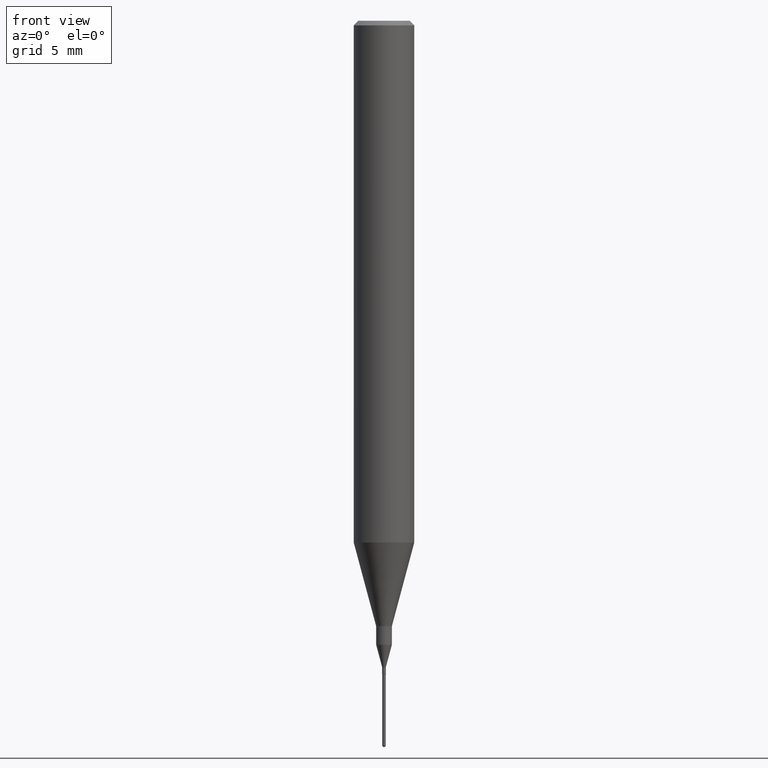
[diagram: clean part render]
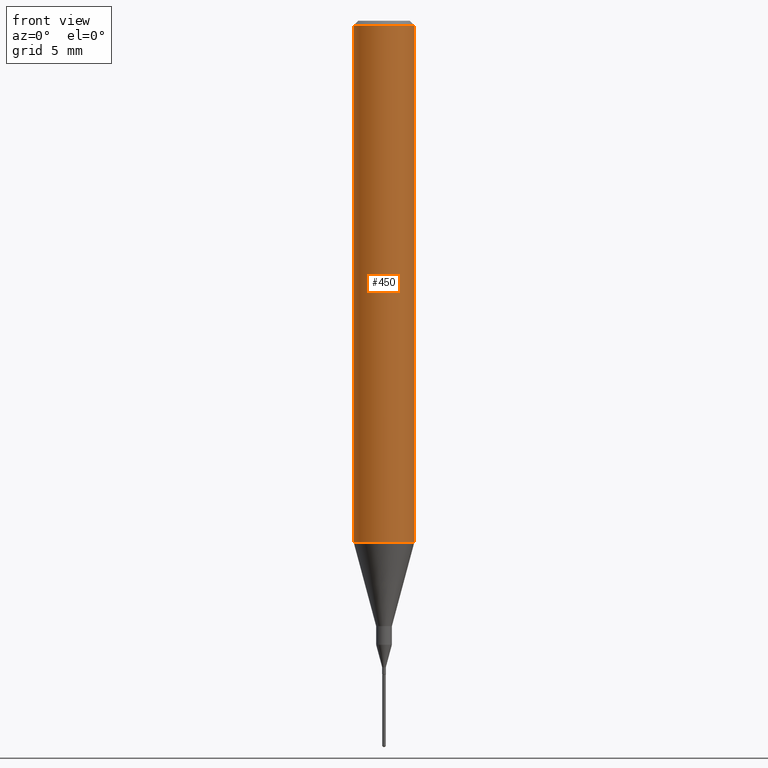
[diagram: same view with one face highlighted and labeled with its STEP entity id]
A machine part, front view. The second image highlights one B-rep face of the part: STEP entity #450.
In plain terms, the highlighted cylindrical surface (edge-blend (fillet) strip) has radius 1.5875 mm, axis along (-0, 0, 1).
Its self-contained STEP definition (entity closure, byte-faithful):
#16 = DIRECTION ( 'NONE',  ( 1.000000000000000000, -6.982962677686266711E-15, 4.876176775795935793E-29 ) ) ;
#36 = VERTEX_POINT ( 'NONE', #538 ) ;
#39 = CARTESIAN_POINT ( 'NONE',  ( 0.06250000000000012490, -4.198131499960668153E-15, -1.077392650149939346 ) ) ;
#65 = AXIS2_PLACEMENT_3D ( 'NONE', #500, #414, #544 ) ;
#71 = CARTESIAN_POINT ( 'NONE',  ( 0.000000000000000000, 0.000000000000000000, 0.000000000000000000 ) ) ;
#73 = EDGE_CURVE ( 'NONE', #539, #88, #292, .T. ) ;
#88 = VERTEX_POINT ( 'NONE', #379 ) ;
#91 = DIRECTION ( 'NONE',  ( -2.445468806185136877E-29, 3.491481338843145188E-15, 1.000000000000000000 ) ) ;
#118 = EDGE_LOOP ( 'NONE', ( #430, #282, #357, #269 ) ) ;
#125 = CARTESIAN_POINT ( 'NONE',  ( -0.06250000000000006939, 4.440892098500631092E-16, -3.074334431409319267E-30 ) ) ;
#140 = AXIS2_PLACEMENT_3D ( 'NONE', #71, #266, #16 ) ;
#141 = CARTESIAN_POINT ( 'NONE',  ( 0.06250000000000006939, -4.364351673553921624E-16, 3.047610484872463374E-30 ) ) ;
#150 = EDGE_CURVE ( 'NONE', #311, #539, #316, .T. ) ;
#177 = VECTOR ( 'NONE', #91, 39.37007874015748143 ) ;
#192 = EDGE_CURVE ( 'NONE', #36, #88, #504, .T. ) ;
#206 = FACE_OUTER_BOUND ( 'NONE', #118, .T. ) ;
#207 = CARTESIAN_POINT ( 'NONE',  ( 2.634730117954813298E-29, -3.761696332605275695E-15, -1.077392650149939346 ) ) ;
#228 = LINE ( 'NONE', #125, #454 ) ;
#252 = EDGE_CURVE ( 'NONE', #311, #36, #228, .T. ) ;
#266 = DIRECTION ( 'NONE',  ( -2.445468806185136597E-29, 3.491481338843145583E-15, 1.000000000000000000 ) ) ;
#269 = ORIENTED_EDGE ( 'NONE', *, *, #192, .F. ) ;
#282 = ORIENTED_EDGE ( 'NONE', *, *, #150, .T. ) ;
#292 = LINE ( 'NONE', #141, #177 ) ;
#311 = VERTEX_POINT ( 'NONE', #521 ) ;
#316 = CIRCLE ( 'NONE', #411, 0.06250000000000012490 ) ;
#351 = CYLINDRICAL_SURFACE ( 'NONE', #140, 0.06250000000000006939 ) ;
#357 = ORIENTED_EDGE ( 'NONE', *, *, #73, .T. ) ;
#379 = CARTESIAN_POINT ( 'NONE',  ( 0.06250000000000000000, -4.691678049070464390E-16, -0.009375000000000067307 ) ) ;
#391 = DIRECTION ( 'NONE',  ( -2.445468806185136597E-29, 3.491481338843145583E-15, 1.000000000000000000 ) ) ;
#411 = AXIS2_PLACEMENT_3D ( 'NONE', #207, #391, #522 ) ;
#414 = DIRECTION ( 'NONE',  ( -2.445468806185136597E-29, 3.491481338843145583E-15, 1.000000000000000000 ) ) ;
#430 = ORIENTED_EDGE ( 'NONE', *, *, #252, .F. ) ;
#450 = ADVANCED_FACE ( 'NONE', ( #206 ), #351, .T. ) ;
#454 = VECTOR ( 'NONE', #489, 39.37007874015748143 ) ;
#489 = DIRECTION ( 'NONE',  ( -2.445468806185136877E-29, 3.491481338843145188E-15, 1.000000000000000000 ) ) ;
#500 = CARTESIAN_POINT ( 'NONE',  ( 2.292627005798582375E-31, -3.273263755165472650E-17, -0.009375000000000067307 ) ) ;
#504 = CIRCLE ( 'NONE', #65, 0.06250000000000000000 ) ;
#521 = CARTESIAN_POINT ( 'NONE',  ( -0.06250000000000012490, -3.317607122755211895E-15, -1.077392650149939346 ) ) ;
#522 = DIRECTION ( 'NONE',  ( 1.000000000000000000, -6.982962677686264344E-15, 0.000000000000000000 ) ) ;
#538 = CARTESIAN_POINT ( 'NONE',  ( -0.06250000000000000000, -1.453125275228401137E-15, -0.009375000000000067307 ) ) ;
#539 = VERTEX_POINT ( 'NONE', #39 ) ;
#544 = DIRECTION ( 'NONE',  ( 1.000000000000000000, -6.982962677686266711E-15, 0.000000000000000000 ) ) ;